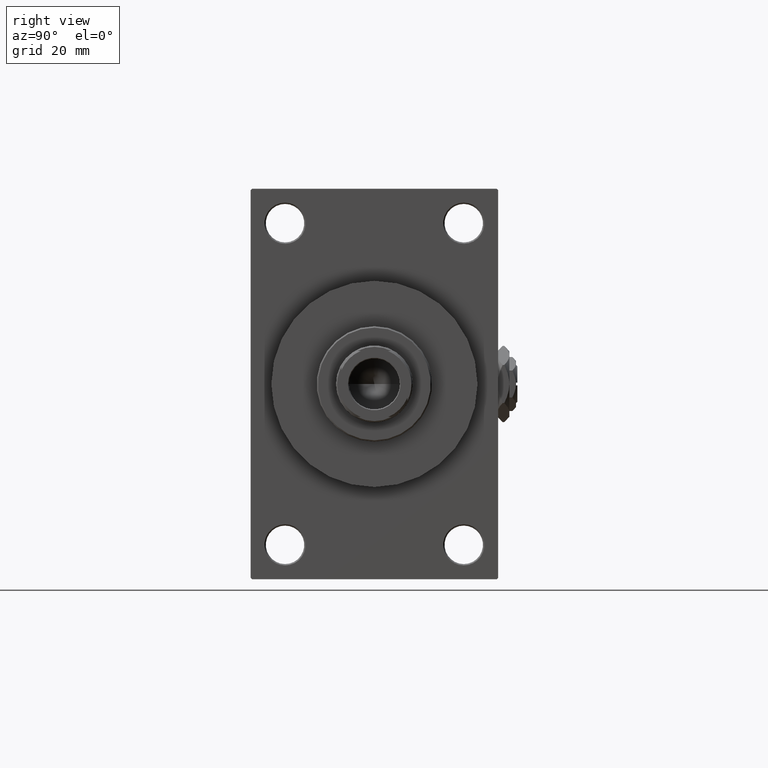
[diagram: clean part render]
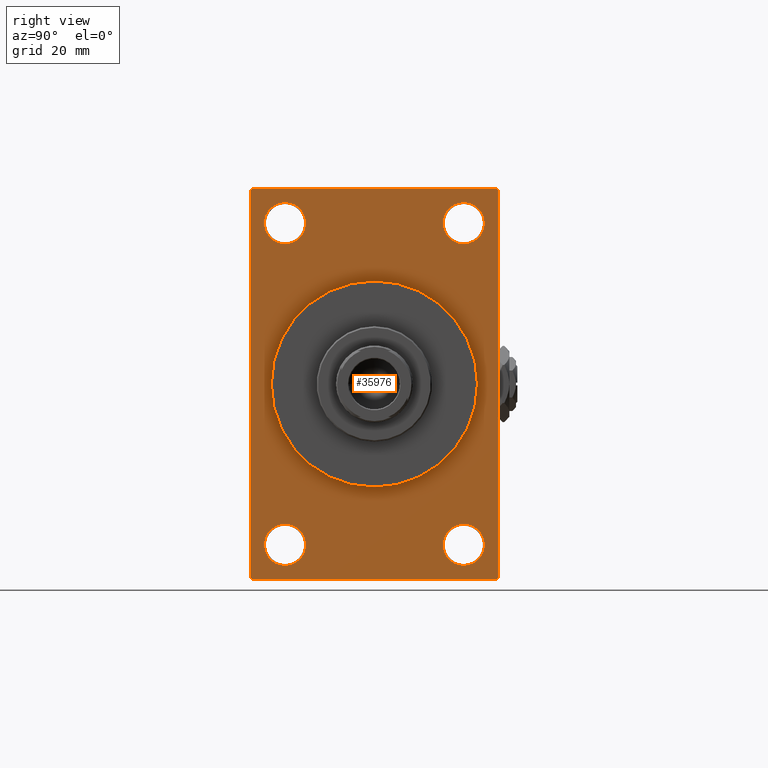
[diagram: same view with one face highlighted and labeled with its STEP entity id]
A machine part, right view. The second image highlights one B-rep face of the part: STEP entity #35976.
In plain terms, the highlighted planar face has unit normal (-1, 0, 0).
Its self-contained STEP definition (entity closure, byte-faithful):
#119 = VECTOR ( 'NONE', #36260, 1000.000000000000000 ) ;
#300 = CARTESIAN_POINT ( 'NONE',  ( 140.0000000000000000, -44.49999999999995026, 70.99999999999998579 ) ) ;
#386 = DIRECTION ( 'NONE',  ( 0.000000000000000000, 0.7071067811865573427, -0.7071067811865378028 ) ) ;
#481 = ORIENTED_EDGE ( 'NONE', *, *, #31277, .T. ) ;
#495 = PLANE ( 'NONE',  #15448 ) ;
#1313 = CARTESIAN_POINT ( 'NONE',  ( 140.0000000000000000, 0.000000000000000000, 0.000000000000000000 ) ) ;
#2163 = CIRCLE ( 'NONE', #48793, 7.500000000000034639 ) ;
#2537 = CARTESIAN_POINT ( 'NONE',  ( 140.0000000000000000, 4.592425496802575156E-15, -37.50000000000000711 ) ) ;
#3245 = AXIS2_PLACEMENT_3D ( 'NONE', #1313, #27802, #34989 ) ;
#3357 = DIRECTION ( 'NONE',  ( -1.000000000000000000, 0.000000000000000000, -0.000000000000000000 ) ) ;
#3690 = VERTEX_POINT ( 'NONE', #32363 ) ;
#3855 = ORIENTED_EDGE ( 'NONE', *, *, #37412, .T. ) ;
#4138 = VERTEX_POINT ( 'NONE', #11736 ) ;
#4239 = CIRCLE ( 'NONE', #8965, 7.500000000000034639 ) ;
#4344 = LINE ( 'NONE', #37525, #30654 ) ;
#4420 = DIRECTION ( 'NONE',  ( -0.000000000000000000, -0.7071067811865426878, -0.7071067811865524577 ) ) ;
#4732 = DIRECTION ( 'NONE',  ( 0.000000000000000000, 0.000000000000000000, 1.000000000000000000 ) ) ;
#4854 = CIRCLE ( 'NONE', #3245, 37.50000000000000711 ) ;
#4872 = DIRECTION ( 'NONE',  ( -1.000000000000000000, 0.000000000000000000, -0.000000000000000000 ) ) ;
#4905 = LINE ( 'NONE', #16040, #26955 ) ;
#5305 = EDGE_LOOP ( 'NONE', ( #29791, #44476 ) ) ;
#5486 = AXIS2_PLACEMENT_3D ( 'NONE', #15021, #45227, #30629 ) ;
#5739 = EDGE_CURVE ( 'NONE', #40331, #17912, #4905, .T. ) ;
#6333 = EDGE_CURVE ( 'NONE', #35022, #27513, #7196, .T. ) ;
#6921 = CARTESIAN_POINT ( 'NONE',  ( 140.0000000000000000, 32.50000000000000711, -50.99999999999996447 ) ) ;
#7196 = LINE ( 'NONE', #48282, #15101 ) ;
#7246 = CARTESIAN_POINT ( 'NONE',  ( 140.0000000000000000, -32.50000000000000000, -50.99999999999995737 ) ) ;
#7271 = VERTEX_POINT ( 'NONE', #7246 ) ;
#7403 = DIRECTION ( 'NONE',  ( 0.000000000000000000, 0.000000000000000000, 1.000000000000000000 ) ) ;
#7723 = CARTESIAN_POINT ( 'NONE',  ( 140.0000000000000000, -44.99999999999997158, -70.50000000000000000 ) ) ;
#7817 = LINE ( 'NONE', #38029, #20178 ) ;
#7820 = EDGE_CURVE ( 'NONE', #7271, #3690, #27836, .T. ) ;
#8588 = EDGE_CURVE ( 'NONE', #27937, #47596, #42074, .T. ) ;
#8908 = EDGE_CURVE ( 'NONE', #35022, #10903, #46493, .T. ) ;
#8965 = AXIS2_PLACEMENT_3D ( 'NONE', #13740, #36262, #14222 ) ;
#9640 = VERTEX_POINT ( 'NONE', #31183 ) ;
#9753 = CIRCLE ( 'NONE', #48468, 7.499999999999936939 ) ;
#10056 = DIRECTION ( 'NONE',  ( 0.000000000000000000, 0.000000000000000000, 1.000000000000000000 ) ) ;
#10067 = ORIENTED_EDGE ( 'NONE', *, *, #7820, .T. ) ;
#10227 = CIRCLE ( 'NONE', #5486, 7.499999999999936939 ) ;
#10903 = VERTEX_POINT ( 'NONE', #33550 ) ;
#11557 = ORIENTED_EDGE ( 'NONE', *, *, #33118, .T. ) ;
#11736 = CARTESIAN_POINT ( 'NONE',  ( 140.0000000000000000, -32.50000000000000000, 51.00000000000007105 ) ) ;
#12289 = CARTESIAN_POINT ( 'NONE',  ( 140.0000000000000000, -32.50000000000000000, -58.49999999999999289 ) ) ;
#12832 = DIRECTION ( 'NONE',  ( 0.000000000000000000, -1.000000000000000000, -1.541976423090495633E-16 ) ) ;
#12903 = LINE ( 'NONE', #39150, #42368 ) ;
#13740 = CARTESIAN_POINT ( 'NONE',  ( 140.0000000000000000, 32.50000000000000711, -58.50000000000000000 ) ) ;
#13794 = VERTEX_POINT ( 'NONE', #6921 ) ;
#14091 = DIRECTION ( 'NONE',  ( 0.000000000000000000, 0.000000000000000000, 1.000000000000000000 ) ) ;
#14153 = EDGE_CURVE ( 'NONE', #47596, #27937, #10227, .T. ) ;
#14222 = DIRECTION ( 'NONE',  ( 0.000000000000000000, 0.000000000000000000, 1.000000000000000000 ) ) ;
#14389 = DIRECTION ( 'NONE',  ( -0.000000000000000000, 0.7071067811865574537, 0.7071067811865376918 ) ) ;
#14458 = CARTESIAN_POINT ( 'NONE',  ( 140.0000000000000000, 44.50000000000002132, 71.00000000000000000 ) ) ;
#15021 = CARTESIAN_POINT ( 'NONE',  ( 140.0000000000000000, 32.50000000000000711, 58.50000000000000711 ) ) ;
#15101 = VECTOR ( 'NONE', #14389, 999.9999999999998863 ) ;
#15343 = FACE_BOUND ( 'NONE', #5305, .T. ) ;
#15448 = AXIS2_PLACEMENT_3D ( 'NONE', #42075, #31185, #34645 ) ;
#16040 = CARTESIAN_POINT ( 'NONE',  ( 140.0000000000000000, -44.99999999999997158, 70.49999999999998579 ) ) ;
#16237 = CARTESIAN_POINT ( 'NONE',  ( 140.0000000000000000, 32.50000000000000711, 51.00000000000007105 ) ) ;
#17217 = EDGE_LOOP ( 'NONE', ( #481, #10067 ) ) ;
#17775 = ORIENTED_EDGE ( 'NONE', *, *, #30940, .T. ) ;
#17811 = CARTESIAN_POINT ( 'NONE',  ( 140.0000000000000000, 32.50000000000000711, -66.00000000000002842 ) ) ;
#17817 = CIRCLE ( 'NONE', #26512, 7.500000000000041744 ) ;
#17912 = VERTEX_POINT ( 'NONE', #40576 ) ;
#17932 = VERTEX_POINT ( 'NONE', #17811 ) ;
#18629 = EDGE_LOOP ( 'NONE', ( #22368, #3855 ) ) ;
#18892 = ORIENTED_EDGE ( 'NONE', *, *, #40194, .T. ) ;
#19621 = CARTESIAN_POINT ( 'NONE',  ( 140.0000000000000000, 44.50000000000004263, -70.99999999999998579 ) ) ;
#20178 = VECTOR ( 'NONE', #31332, 1000.000000000000000 ) ;
#20928 = CARTESIAN_POINT ( 'NONE',  ( 140.0000000000000000, 45.00000000000001421, -70.50000000000001421 ) ) ;
#21032 = CARTESIAN_POINT ( 'NONE',  ( 140.0000000000000000, -32.50000000000000000, -58.49999999999999289 ) ) ;
#21208 = ORIENTED_EDGE ( 'NONE', *, *, #26582, .T. ) ;
#21509 = AXIS2_PLACEMENT_3D ( 'NONE', #12289, #39022, #7403 ) ;
#22368 = ORIENTED_EDGE ( 'NONE', *, *, #47618, .T. ) ;
#22442 = VECTOR ( 'NONE', #12832, 1000.000000000000000 ) ;
#22655 = VERTEX_POINT ( 'NONE', #45462 ) ;
#22765 = FACE_BOUND ( 'NONE', #38000, .T. ) ;
#22893 = EDGE_CURVE ( 'NONE', #9640, #27513, #47879, .T. ) ;
#23409 = ORIENTED_EDGE ( 'NONE', *, *, #6333, .T. ) ;
#23744 = ORIENTED_EDGE ( 'NONE', *, *, #14153, .T. ) ;
#23903 = VERTEX_POINT ( 'NONE', #37253 ) ;
#25482 = DIRECTION ( 'NONE',  ( -1.000000000000000000, 0.000000000000000000, -0.000000000000000000 ) ) ;
#26030 = CARTESIAN_POINT ( 'NONE',  ( 140.0000000000000000, -32.50000000000000000, 58.50000000000000711 ) ) ;
#26512 = AXIS2_PLACEMENT_3D ( 'NONE', #21032, #25482, #14091 ) ;
#26582 = EDGE_CURVE ( 'NONE', #31536, #4138, #9753, .T. ) ;
#26770 = DIRECTION ( 'NONE',  ( -1.000000000000000000, 0.000000000000000000, -0.000000000000000000 ) ) ;
#26955 = VECTOR ( 'NONE', #4420, 1000.000000000000000 ) ;
#26966 = EDGE_CURVE ( 'NONE', #47893, #23903, #46116, .T. ) ;
#26978 = FACE_BOUND ( 'NONE', #17217, .T. ) ;
#27383 = ORIENTED_EDGE ( 'NONE', *, *, #22893, .F. ) ;
#27458 = CARTESIAN_POINT ( 'NONE',  ( 140.0000000000000000, 45.00000000000001421, -70.99999999999998579 ) ) ;
#27513 = VERTEX_POINT ( 'NONE', #20928 ) ;
#27592 = ORIENTED_EDGE ( 'NONE', *, *, #46732, .T. ) ;
#27802 = DIRECTION ( 'NONE',  ( 1.000000000000000000, 0.000000000000000000, 0.000000000000000000 ) ) ;
#27836 = CIRCLE ( 'NONE', #21509, 7.500000000000041744 ) ;
#27937 = VERTEX_POINT ( 'NONE', #38961 ) ;
#28648 = AXIS2_PLACEMENT_3D ( 'NONE', #39620, #35912, #35419 ) ;
#28708 = VERTEX_POINT ( 'NONE', #7723 ) ;
#28755 = DIRECTION ( 'NONE',  ( 0.000000000000000000, 0.000000000000000000, -1.000000000000000000 ) ) ;
#29363 = ORIENTED_EDGE ( 'NONE', *, *, #8908, .F. ) ;
#29791 = ORIENTED_EDGE ( 'NONE', *, *, #39122, .F. ) ;
#30221 = AXIS2_PLACEMENT_3D ( 'NONE', #42478, #4872, #30868 ) ;
#30629 = DIRECTION ( 'NONE',  ( 0.000000000000000000, 0.000000000000000000, 1.000000000000000000 ) ) ;
#30654 = VECTOR ( 'NONE', #386, 1000.000000000000000 ) ;
#30868 = DIRECTION ( 'NONE',  ( 0.000000000000000000, 0.000000000000000000, 1.000000000000000000 ) ) ;
#30940 = EDGE_CURVE ( 'NONE', #22655, #40331, #7817, .T. ) ;
#31183 = CARTESIAN_POINT ( 'NONE',  ( 140.0000000000000000, 45.00000000000002132, 70.50000000000000000 ) ) ;
#31185 = DIRECTION ( 'NONE',  ( -1.000000000000000000, 0.000000000000000000, -0.000000000000000000 ) ) ;
#31277 = EDGE_CURVE ( 'NONE', #3690, #7271, #17817, .T. ) ;
#31332 = DIRECTION ( 'NONE',  ( 0.000000000000000000, -1.000000000000000000, -1.541976423090495387E-16 ) ) ;
#31536 = VERTEX_POINT ( 'NONE', #45756 ) ;
#32363 = CARTESIAN_POINT ( 'NONE',  ( 140.0000000000000000, -32.50000000000000000, -66.00000000000001421 ) ) ;
#32594 = DIRECTION ( 'NONE',  ( 0.000000000000000000, 0.000000000000000000, -1.000000000000000000 ) ) ;
#33008 = EDGE_LOOP ( 'NONE', ( #11557, #39228, #29363, #23409, #27383, #27592, #17775, #41886 ) ) ;
#33118 = EDGE_CURVE ( 'NONE', #17912, #28708, #12903, .T. ) ;
#33550 = CARTESIAN_POINT ( 'NONE',  ( 140.0000000000000000, -44.49999999999994316, -71.00000000000000000 ) ) ;
#34645 = DIRECTION ( 'NONE',  ( -0.000000000000000000, 0.000000000000000000, 1.000000000000000000 ) ) ;
#34989 = DIRECTION ( 'NONE',  ( 0.000000000000000000, 0.000000000000000000, -1.000000000000000000 ) ) ;
#35022 = VERTEX_POINT ( 'NONE', #19621 ) ;
#35419 = DIRECTION ( 'NONE',  ( 0.000000000000000000, 0.000000000000000000, 1.000000000000000000 ) ) ;
#35912 = DIRECTION ( 'NONE',  ( -1.000000000000000000, 0.000000000000000000, -0.000000000000000000 ) ) ;
#35976 = ADVANCED_FACE ( 'NONE', ( #22765, #26978, #42548, #37871, #15343, #36958 ), #495, .F. ) ;
#36260 = DIRECTION ( 'NONE',  ( 0.000000000000000000, -4.886545002751570165E-17, -1.000000000000000000 ) ) ;
#36262 = DIRECTION ( 'NONE',  ( -1.000000000000000000, 0.000000000000000000, -0.000000000000000000 ) ) ;
#36958 = FACE_OUTER_BOUND ( 'NONE', #33008, .T. ) ;
#37253 = CARTESIAN_POINT ( 'NONE',  ( 140.0000000000000000, 0.000000000000000000, 37.50000000000000711 ) ) ;
#37412 = EDGE_CURVE ( 'NONE', #13794, #17932, #2163, .T. ) ;
#37494 = EDGE_CURVE ( 'NONE', #28708, #10903, #4344, .T. ) ;
#37525 = CARTESIAN_POINT ( 'NONE',  ( 140.0000000000000000, -44.49999999999997158, -71.00000000000000000 ) ) ;
#37871 = FACE_BOUND ( 'NONE', #40732, .T. ) ;
#38000 = EDGE_LOOP ( 'NONE', ( #18892, #21208 ) ) ;
#38029 = CARTESIAN_POINT ( 'NONE',  ( 140.0000000000000000, 45.00000000000002132, 71.00000000000000000 ) ) ;
#38961 = CARTESIAN_POINT ( 'NONE',  ( 140.0000000000000000, 32.50000000000000711, 65.99999999999994316 ) ) ;
#39022 = DIRECTION ( 'NONE',  ( -1.000000000000000000, 0.000000000000000000, -0.000000000000000000 ) ) ;
#39122 = EDGE_CURVE ( 'NONE', #23903, #47893, #4854, .T. ) ;
#39150 = CARTESIAN_POINT ( 'NONE',  ( 140.0000000000000000, -44.99999999999997158, 70.99999999999998579 ) ) ;
#39228 = ORIENTED_EDGE ( 'NONE', *, *, #37494, .T. ) ;
#39620 = CARTESIAN_POINT ( 'NONE',  ( 140.0000000000000000, 32.50000000000000711, 58.50000000000000711 ) ) ;
#40194 = EDGE_CURVE ( 'NONE', #4138, #31536, #41277, .T. ) ;
#40331 = VERTEX_POINT ( 'NONE', #300 ) ;
#40576 = CARTESIAN_POINT ( 'NONE',  ( 140.0000000000000000, -44.99999999999997158, 70.49999999999998579 ) ) ;
#40732 = EDGE_LOOP ( 'NONE', ( #23744, #41899 ) ) ;
#41277 = CIRCLE ( 'NONE', #30221, 7.499999999999936939 ) ;
#41384 = AXIS2_PLACEMENT_3D ( 'NONE', #47184, #47422, #32594 ) ;
#41886 = ORIENTED_EDGE ( 'NONE', *, *, #5739, .T. ) ;
#41899 = ORIENTED_EDGE ( 'NONE', *, *, #8588, .T. ) ;
#42074 = CIRCLE ( 'NONE', #28648, 7.499999999999936939 ) ;
#42075 = CARTESIAN_POINT ( 'NONE',  ( 140.0000000000000000, 0.000000000000000000, 0.000000000000000000 ) ) ;
#42368 = VECTOR ( 'NONE', #28755, 1000.000000000000000 ) ;
#42478 = CARTESIAN_POINT ( 'NONE',  ( 140.0000000000000000, -32.50000000000000000, 58.50000000000000711 ) ) ;
#42548 = FACE_BOUND ( 'NONE', #18629, .T. ) ;
#44476 = ORIENTED_EDGE ( 'NONE', *, *, #26966, .F. ) ;
#44515 = VECTOR ( 'NONE', #44652, 1000.000000000000114 ) ;
#44652 = DIRECTION ( 'NONE',  ( 0.000000000000000000, -0.7071067811865474617, 0.7071067811865474617 ) ) ;
#44697 = CARTESIAN_POINT ( 'NONE',  ( 140.0000000000000000, 32.50000000000000711, -58.50000000000000000 ) ) ;
#45227 = DIRECTION ( 'NONE',  ( -1.000000000000000000, 0.000000000000000000, -0.000000000000000000 ) ) ;
#45462 = CARTESIAN_POINT ( 'NONE',  ( 140.0000000000000000, 44.50000000000002132, 71.00000000000000000 ) ) ;
#45756 = CARTESIAN_POINT ( 'NONE',  ( 140.0000000000000000, -32.50000000000000000, 65.99999999999994316 ) ) ;
#46116 = CIRCLE ( 'NONE', #41384, 37.50000000000000711 ) ;
#46493 = LINE ( 'NONE', #27458, #22442 ) ;
#46732 = EDGE_CURVE ( 'NONE', #9640, #22655, #48352, .T. ) ;
#47184 = CARTESIAN_POINT ( 'NONE',  ( 140.0000000000000000, 0.000000000000000000, 0.000000000000000000 ) ) ;
#47422 = DIRECTION ( 'NONE',  ( 1.000000000000000000, 0.000000000000000000, 0.000000000000000000 ) ) ;
#47596 = VERTEX_POINT ( 'NONE', #16237 ) ;
#47618 = EDGE_CURVE ( 'NONE', #17932, #13794, #4239, .T. ) ;
#47631 = CARTESIAN_POINT ( 'NONE',  ( 140.0000000000000000, 45.00000000000002132, 71.00000000000000000 ) ) ;
#47879 = LINE ( 'NONE', #47631, #119 ) ;
#47893 = VERTEX_POINT ( 'NONE', #2537 ) ;
#48282 = CARTESIAN_POINT ( 'NONE',  ( 140.0000000000000000, 45.00000000000001421, -70.50000000000001421 ) ) ;
#48352 = LINE ( 'NONE', #14458, #44515 ) ;
#48468 = AXIS2_PLACEMENT_3D ( 'NONE', #26030, #26770, #4732 ) ;
#48793 = AXIS2_PLACEMENT_3D ( 'NONE', #44697, #3357, #10056 ) ;